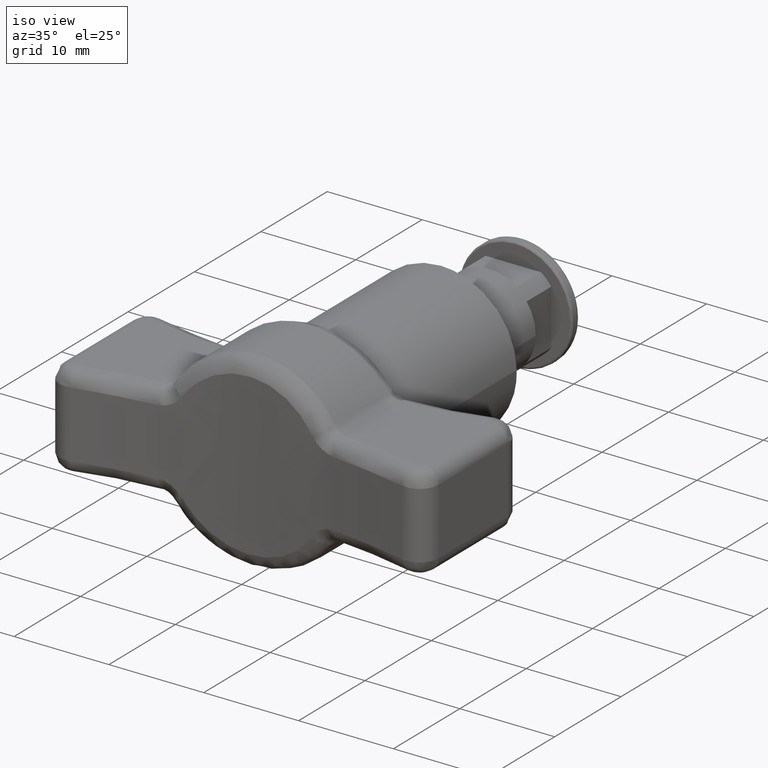
[diagram: clean part render]
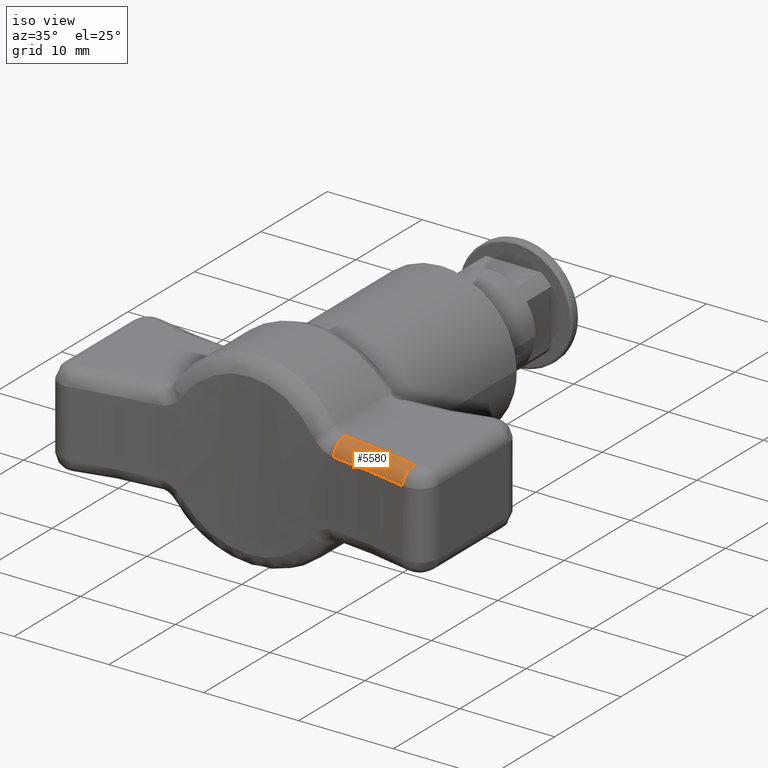
[diagram: same view with one face highlighted and labeled with its STEP entity id]
A machine part, iso view. The second image highlights one B-rep face of the part: STEP entity #5580.
In plain terms, the highlighted face is a freeform B-spline surface patch.
Its self-contained STEP definition (entity closure, byte-faithful):
#4120=CARTESIAN_POINT('',(9.486832817793371,-27.954031693526851,5.000000237479901));
#4121=VERTEX_POINT('',#4120);
#4236=CARTESIAN_POINT('',(17.890244851681651,-29.387806369308951,5.000000237479901));
#4237=VERTEX_POINT('',#4236);
#4238=CARTESIAN_POINT('',(9.486832817793378,-27.954031693526801,5.000000237479901));
#4239=CARTESIAN_POINT('',(13.726083196588945,-28.450869990577619,5.000000237479901));
#4240=CARTESIAN_POINT('',(17.890244851681668,-29.387806369308851,5.000000237479901));
#4248=(BOUNDED_CURVE()B_SPLINE_CURVE(2,(#4238,#4239,#4240),.UNSPECIFIED.,.F.,.U.)CURVE()GEOMETRIC_REPRESENTATION_ITEM()QUASI_UNIFORM_CURVE()RATIONAL_B_SPLINE_CURVE((1.0,0.998631435135119,1.0))REPRESENTATION_ITEM(''));
#4249=EDGE_CURVE('',#4121,#4237,#4248,.T.);
#5452=CARTESIAN_POINT('',(9.312228540943931,-29.443834816931400,3.500000237479895));
#5453=VERTEX_POINT('',#5452);
#5475=CARTESIAN_POINT('',(9.486832817793371,-27.954031693526900,5.000000237479895));
#5476=CARTESIAN_POINT('',(9.414509358273989,-28.571128352506836,5.000000237479895));
#5477=CARTESIAN_POINT('',(9.363368949608962,-29.007481584719120,4.560660409259735));
#5478=CARTESIAN_POINT('',(9.312228540943931,-29.443834816931425,4.121320581039552));
#5479=CARTESIAN_POINT('',(9.312228540943931,-29.443834816931432,3.500000237479895));
#5487=(BOUNDED_CURVE()B_SPLINE_CURVE(2,(#5475,#5476,#5477,#5478,#5479),.UNSPECIFIED.,.F.,.U.)B_SPLINE_CURVE_WITH_KNOTS((3,2,3),(0.0,0.500000000000000,1.0),.UNSPECIFIED.)CURVE()GEOMETRIC_REPRESENTATION_ITEM()RATIONAL_B_SPLINE_CURVE((1.0,0.923879532511290,1.0,0.923879532511290,1.0))REPRESENTATION_ITEM(''));
#5488=EDGE_CURVE('',#4121,#5453,#5487,.T.);
#5529=CARTESIAN_POINT('',(8.897405541537534,-29.392661177555055,3.395694480929347));
#5530=CARTESIAN_POINT('',(13.477946525951195,-29.905254463787411,3.395694480929347));
#5531=CARTESIAN_POINT('',(17.969314443320162,-30.940494444570913,3.395694480929348));
#5532=CARTESIAN_POINT('',(8.884067063265151,-29.511854011400835,5.116306907807030));
#5533=CARTESIAN_POINT('',(13.457741164281048,-30.023678847282241,5.116306907807029));
#5534=CARTESIAN_POINT('',(17.942375881381754,-31.057366855872736,5.116306907807030));
#5535=CARTESIAN_POINT('',(9.075420694513412,-27.801915208082846,4.996369228638735));
#5536=CARTESIAN_POINT('',(13.747607013091727,-28.324764222441470,4.996369228638735));
#5537=CARTESIAN_POINT('',(18.328836131363435,-29.380716803396513,4.996369228638734));
#5545=(BOUNDED_SURFACE()B_SPLINE_SURFACE(2,2,((#5529,#5532,#5535),(#5530,#5533,#5536),(#5531,#5534,#5537)),.UNSPECIFIED.,.F.,.F.,.U.)B_SPLINE_SURFACE_WITH_KNOTS((3,3),(3,3),(25.178830886268621,34.602049088096621),(0.313300218038261,3.046862189121544),.UNSPECIFIED.)GEOMETRIC_REPRESENTATION_ITEM()RATIONAL_B_SPLINE_SURFACE(((0.890249705873831,0.584203948860104,0.890249902651769),(0.888759208287221,0.583225847356538,0.888759404735703),(0.890216139327527,0.584181921659453,0.890216336098045)))REPRESENTATION_ITEM('')SURFACE());
#5546=ORIENTED_EDGE('',*,*,#5488,.T.);
#5547=CARTESIAN_POINT('',(17.560976556879549,-30.851221002978448,3.500000237479870));
#5548=VERTEX_POINT('',#5547);
#5549=CARTESIAN_POINT('',(17.560976556879581,-30.851221002978381,3.500000237479870));
#5550=CARTESIAN_POINT('',(13.473455910270589,-29.931528851272589,3.500000237479870));
#5551=CARTESIAN_POINT('',(9.312228540943957,-29.443834816931329,3.500000237479870));
#5559=(BOUNDED_CURVE()B_SPLINE_CURVE(2,(#5549,#5550,#5551),.UNSPECIFIED.,.F.,.U.)CURVE()GEOMETRIC_REPRESENTATION_ITEM()QUASI_UNIFORM_CURVE()RATIONAL_B_SPLINE_CURVE((1.0,0.998631435135119,1.0))REPRESENTATION_ITEM(''));
#5560=EDGE_CURVE('',#5548,#5453,#5559,.T.);
#5561=ORIENTED_EDGE('',*,*,#5560,.F.);
#5562=CARTESIAN_POINT('',(17.890244851681651,-29.387806369308951,5.000000237479895));
#5563=CARTESIAN_POINT('',(17.753857458315167,-29.993972557950126,5.000000237479895));
#5564=CARTESIAN_POINT('',(17.657417007597370,-30.422596780464310,4.560660409259708));
#5565=CARTESIAN_POINT('',(17.560976556879563,-30.851221002978480,4.121320581039531));
#5566=CARTESIAN_POINT('',(17.560976556879570,-30.851221002978480,3.500000237479895));
#5574=(BOUNDED_CURVE()B_SPLINE_CURVE(2,(#5562,#5563,#5564,#5565,#5566),.UNSPECIFIED.,.F.,.U.)B_SPLINE_CURVE_WITH_KNOTS((3,2,3),(0.0,0.500000000000000,1.0),.UNSPECIFIED.)CURVE()GEOMETRIC_REPRESENTATION_ITEM()RATIONAL_B_SPLINE_CURVE((1.0,0.923879532511285,1.0,0.923879532511285,1.0))REPRESENTATION_ITEM(''));
#5575=EDGE_CURVE('',#4237,#5548,#5574,.T.);
#5576=ORIENTED_EDGE('',*,*,#5575,.F.);
#5577=ORIENTED_EDGE('',*,*,#4249,.F.);
#5578=EDGE_LOOP('',(#5546,#5561,#5576,#5577));
#5579=FACE_OUTER_BOUND('',#5578,.T.);
#5580=ADVANCED_FACE('',(#5579),#5545,.T.);